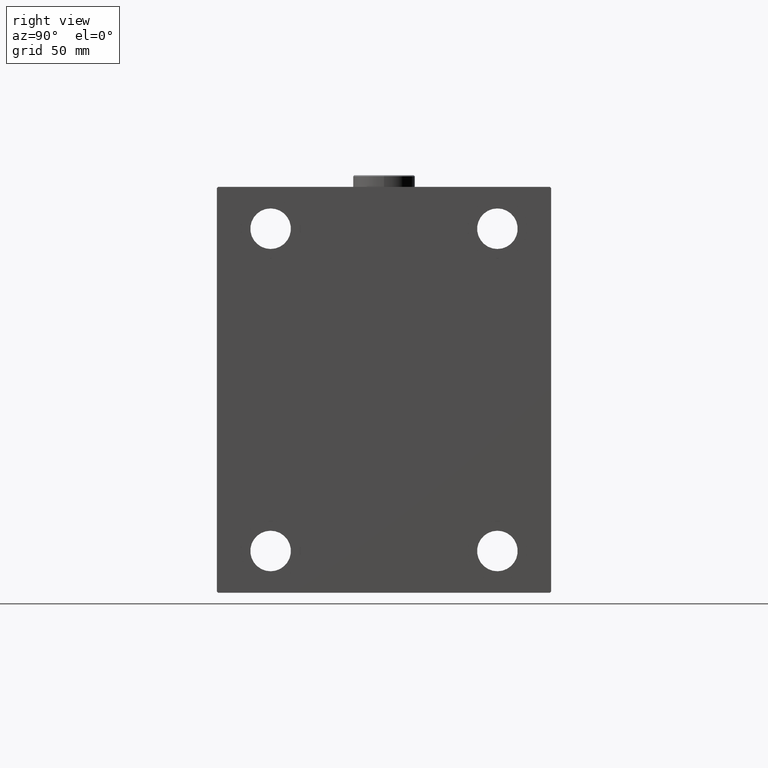
[diagram: clean part render]
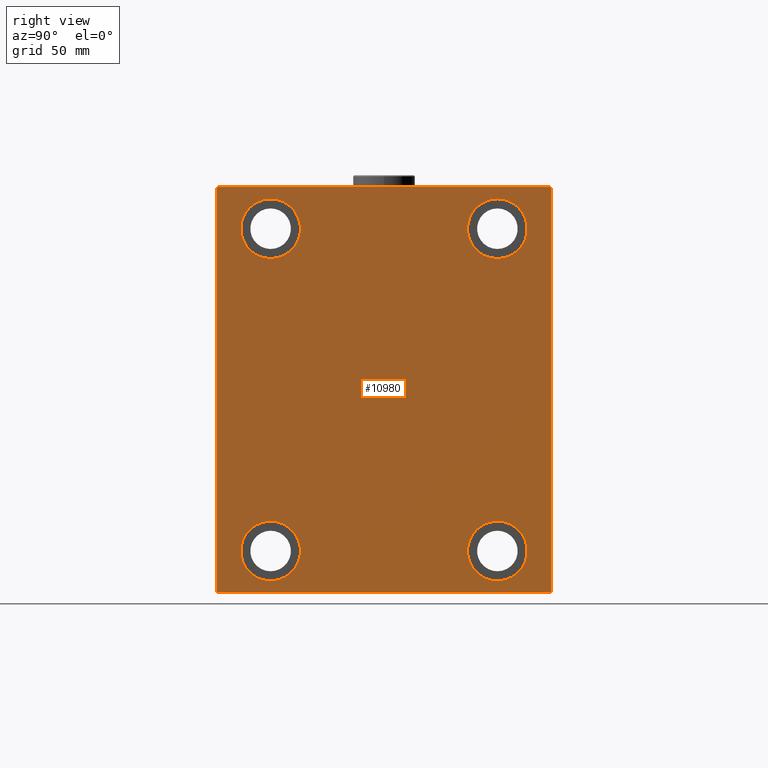
[diagram: same view with one face highlighted and labeled with its STEP entity id]
A machine part, right view. The second image highlights one B-rep face of the part: STEP entity #10980.
In plain terms, the highlighted planar face has unit normal (1, 0, 0).
Its self-contained STEP definition (entity closure, byte-faithful):
#272 = ORIENTED_EDGE ( 'NONE', *, *, #29087, .T. ) ;
#432 = DIRECTION ( 'NONE',  ( -0.000000000000000000, -0.7071067811865574537, 0.7071067811865376918 ) ) ;
#734 = ORIENTED_EDGE ( 'NONE', *, *, #31052, .T. ) ;
#816 = VERTEX_POINT ( 'NONE', #19893 ) ;
#879 = CARTESIAN_POINT ( 'NONE',  ( 135.0000000000000000, -77.25000000000001421, 77.25000000000001421 ) ) ;
#1199 = CARTESIAN_POINT ( 'NONE',  ( 135.0000000000000000, -47.49999999999997868, 67.50000000000000000 ) ) ;
#1245 = DIRECTION ( 'NONE',  ( -1.000000000000000000, -0.000000000000000000, -0.000000000000000000 ) ) ;
#1296 = DIRECTION ( 'NONE',  ( -1.000000000000000000, -0.000000000000000000, -0.000000000000000000 ) ) ;
#1312 = CARTESIAN_POINT ( 'NONE',  ( 135.0000000000000000, -47.49999999999999289, -55.00000000000000711 ) ) ;
#1444 = EDGE_CURVE ( 'NONE', #2184, #17658, #1511, .T. ) ;
#1511 = LINE ( 'NONE', #26849, #3877 ) ;
#1662 = ORIENTED_EDGE ( 'NONE', *, *, #27435, .T. ) ;
#1689 = CARTESIAN_POINT ( 'NONE',  ( 135.0000000000000000, -47.49999999999997868, 80.00000000000001421 ) ) ;
#1893 = DIRECTION ( 'NONE',  ( -1.000000000000000000, -0.000000000000000000, -0.000000000000000000 ) ) ;
#2170 = EDGE_LOOP ( 'NONE', ( #21534, #46013, #272, #8306, #10230, #734, #3068, #3596 ) ) ;
#2184 = VERTEX_POINT ( 'NONE', #10224 ) ;
#2574 = AXIS2_PLACEMENT_3D ( 'NONE', #1199, #1893, #19869 ) ;
#3068 = ORIENTED_EDGE ( 'NONE', *, *, #9405, .T. ) ;
#3083 = CIRCLE ( 'NONE', #13645, 12.50000000000001066 ) ;
#3486 = EDGE_CURVE ( 'NONE', #15811, #17014, #20440, .T. ) ;
#3596 = ORIENTED_EDGE ( 'NONE', *, *, #5410, .T. ) ;
#3877 = VECTOR ( 'NONE', #30171, 1000.000000000000000 ) ;
#4053 = VECTOR ( 'NONE', #40878, 1000.000000000000000 ) ;
#4209 = DIRECTION ( 'NONE',  ( 0.000000000000000000, -0.7071067811865474617, -0.7071067811865474617 ) ) ;
#4340 = DIRECTION ( 'NONE',  ( -0.000000000000000000, 0.7071067811865376918, 0.7071067811865574537 ) ) ;
#4852 = CARTESIAN_POINT ( 'NONE',  ( 135.0000000000000000, 47.50000000000000711, -67.50000000000000000 ) ) ;
#5410 = EDGE_CURVE ( 'NONE', #28209, #30635, #14635, .T. ) ;
#6150 = VERTEX_POINT ( 'NONE', #32414 ) ;
#6199 = AXIS2_PLACEMENT_3D ( 'NONE', #19288, #7708, #37082 ) ;
#6739 = VECTOR ( 'NONE', #4209, 1000.000000000000114 ) ;
#7311 = CARTESIAN_POINT ( 'NONE',  ( 135.0000000000000000, 69.50000000000007105, 85.00000000000000000 ) ) ;
#7708 = DIRECTION ( 'NONE',  ( -1.000000000000000000, -0.000000000000000000, -0.000000000000000000 ) ) ;
#7764 = CARTESIAN_POINT ( 'NONE',  ( 135.0000000000000000, -69.99999999999998579, 84.50000000000001421 ) ) ;
#7890 = CARTESIAN_POINT ( 'NONE',  ( 135.0000000000000000, 77.25000000000100897, -77.24999999999886313 ) ) ;
#8306 = ORIENTED_EDGE ( 'NONE', *, *, #43431, .T. ) ;
#8488 = ORIENTED_EDGE ( 'NONE', *, *, #40696, .T. ) ;
#8936 = CARTESIAN_POINT ( 'NONE',  ( 135.0000000000000000, 47.50000000000000711, 80.00000000000001421 ) ) ;
#9405 = EDGE_CURVE ( 'NONE', #30742, #28209, #26138, .T. ) ;
#9895 = DIRECTION ( 'NONE',  ( 0.000000000000000000, 0.000000000000000000, 1.000000000000000000 ) ) ;
#9934 = FACE_BOUND ( 'NONE', #27096, .T. ) ;
#10224 = CARTESIAN_POINT ( 'NONE',  ( 135.0000000000000000, -69.49999999999998579, -85.00000000000002842 ) ) ;
#10230 = ORIENTED_EDGE ( 'NONE', *, *, #1444, .T. ) ;
#10980 = ADVANCED_FACE ( 'NONE', ( #9934, #17038, #20821, #16809, #31505 ), #43135, .T. ) ;
#11105 = CARTESIAN_POINT ( 'NONE',  ( 135.0000000000000000, 47.50000000000000711, -67.50000000000000000 ) ) ;
#11418 = ORIENTED_EDGE ( 'NONE', *, *, #43494, .T. ) ;
#11439 = LINE ( 'NONE', #7890, #30580 ) ;
#11481 = DIRECTION ( 'NONE',  ( 0.000000000000000000, 0.000000000000000000, 1.000000000000000000 ) ) ;
#11483 = CIRCLE ( 'NONE', #37967, 12.49999999999999645 ) ;
#11940 = CARTESIAN_POINT ( 'NONE',  ( 135.0000000000000000, 47.50000000000000711, 67.50000000000000000 ) ) ;
#12461 = VECTOR ( 'NONE', #13541, 1000.000000000000000 ) ;
#12764 = VECTOR ( 'NONE', #19025, 1000.000000000000000 ) ;
#12818 = DIRECTION ( 'NONE',  ( 0.000000000000000000, 0.000000000000000000, 1.000000000000000000 ) ) ;
#13076 = EDGE_LOOP ( 'NONE', ( #32431, #40571 ) ) ;
#13269 = DIRECTION ( 'NONE',  ( 1.000000000000000000, 0.000000000000000000, 0.000000000000000000 ) ) ;
#13541 = DIRECTION ( 'NONE',  ( 0.000000000000000000, 0.000000000000000000, -1.000000000000000000 ) ) ;
#13645 = AXIS2_PLACEMENT_3D ( 'NONE', #46161, #39534, #9895 ) ;
#13717 = EDGE_CURVE ( 'NONE', #6150, #18129, #15550, .T. ) ;
#14187 = DIRECTION ( 'NONE',  ( 0.000000000000000000, 0.000000000000000000, -1.000000000000000000 ) ) ;
#14635 = LINE ( 'NONE', #43583, #30464 ) ;
#15186 = AXIS2_PLACEMENT_3D ( 'NONE', #11940, #34207, #11481 ) ;
#15268 = CARTESIAN_POINT ( 'NONE',  ( 135.0000000000000000, -77.24999999999907629, -77.25000000000120792 ) ) ;
#15550 = LINE ( 'NONE', #879, #6739 ) ;
#15811 = VERTEX_POINT ( 'NONE', #1689 ) ;
#16075 = CARTESIAN_POINT ( 'NONE',  ( 135.0000000000000000, -47.49999999999997868, 55.00000000000000000 ) ) ;
#16135 = CIRCLE ( 'NONE', #22191, 12.49999999999999645 ) ;
#16190 = CIRCLE ( 'NONE', #2574, 12.50000000000001066 ) ;
#16809 = FACE_BOUND ( 'NONE', #20377, .T. ) ;
#16928 = CIRCLE ( 'NONE', #19974, 12.49999999999999645 ) ;
#17014 = VERTEX_POINT ( 'NONE', #16075 ) ;
#17038 = FACE_BOUND ( 'NONE', #13076, .T. ) ;
#17424 = CIRCLE ( 'NONE', #15186, 12.50000000000001066 ) ;
#17624 = EDGE_CURVE ( 'NONE', #30635, #6150, #28485, .T. ) ;
#17658 = VERTEX_POINT ( 'NONE', #42046 ) ;
#17853 = EDGE_LOOP ( 'NONE', ( #23426, #22206 ) ) ;
#18055 = EDGE_CURVE ( 'NONE', #28688, #24580, #3083, .T. ) ;
#18129 = VERTEX_POINT ( 'NONE', #7764 ) ;
#18620 = EDGE_CURVE ( 'NONE', #24580, #28688, #17424, .T. ) ;
#19025 = DIRECTION ( 'NONE',  ( 0.000000000000000000, -8.163404592832031500E-17, 1.000000000000000000 ) ) ;
#19288 = CARTESIAN_POINT ( 'NONE',  ( 135.0000000000000000, -47.49999999999999289, -67.50000000000000000 ) ) ;
#19840 = DIRECTION ( 'NONE',  ( 0.000000000000000000, 0.000000000000000000, 1.000000000000000000 ) ) ;
#19869 = DIRECTION ( 'NONE',  ( 0.000000000000000000, 0.000000000000000000, 1.000000000000000000 ) ) ;
#19893 = CARTESIAN_POINT ( 'NONE',  ( 135.0000000000000000, 47.50000000000000711, -80.00000000000000000 ) ) ;
#19974 = AXIS2_PLACEMENT_3D ( 'NONE', #11105, #40036, #22454 ) ;
#20377 = EDGE_LOOP ( 'NONE', ( #25431, #8488 ) ) ;
#20440 = CIRCLE ( 'NONE', #36381, 12.50000000000001066 ) ;
#20612 = LINE ( 'NONE', #15268, #4053 ) ;
#20821 = FACE_BOUND ( 'NONE', #17853, .T. ) ;
#21281 = CARTESIAN_POINT ( 'NONE',  ( 135.0000000000000000, 0.000000000000000000, 0.000000000000000000 ) ) ;
#21534 = ORIENTED_EDGE ( 'NONE', *, *, #17624, .T. ) ;
#22191 = AXIS2_PLACEMENT_3D ( 'NONE', #4852, #1296, #12818 ) ;
#22206 = ORIENTED_EDGE ( 'NONE', *, *, #18620, .T. ) ;
#22454 = DIRECTION ( 'NONE',  ( 0.000000000000000000, 0.000000000000000000, 1.000000000000000000 ) ) ;
#23426 = ORIENTED_EDGE ( 'NONE', *, *, #18055, .T. ) ;
#23970 = LINE ( 'NONE', #42731, #12461 ) ;
#24580 = VERTEX_POINT ( 'NONE', #8936 ) ;
#25431 = ORIENTED_EDGE ( 'NONE', *, *, #39614, .T. ) ;
#26138 = LINE ( 'NONE', #44888, #12764 ) ;
#26849 = CARTESIAN_POINT ( 'NONE',  ( 135.0000000000000000, -69.99999999999998579, -85.00000000000002842 ) ) ;
#27096 = EDGE_LOOP ( 'NONE', ( #11418, #1662 ) ) ;
#27435 = EDGE_CURVE ( 'NONE', #40887, #816, #16928, .T. ) ;
#28209 = VERTEX_POINT ( 'NONE', #28219 ) ;
#28219 = CARTESIAN_POINT ( 'NONE',  ( 135.0000000000000000, 70.00000000000001421, 84.50000000000007105 ) ) ;
#28485 = LINE ( 'NONE', #38240, #44716 ) ;
#28688 = VERTEX_POINT ( 'NONE', #36665 ) ;
#29043 = VERTEX_POINT ( 'NONE', #45123 ) ;
#29087 = EDGE_CURVE ( 'NONE', #18129, #41740, #23970, .T. ) ;
#29438 = CARTESIAN_POINT ( 'NONE',  ( 135.0000000000000000, -69.99999999999998579, -84.50000000000004263 ) ) ;
#30171 = DIRECTION ( 'NONE',  ( 0.000000000000000000, 1.000000000000000000, 9.912705577010325549E-17 ) ) ;
#30431 = EDGE_CURVE ( 'NONE', #17014, #15811, #16190, .T. ) ;
#30464 = VECTOR ( 'NONE', #432, 999.9999999999998863 ) ;
#30580 = VECTOR ( 'NONE', #4340, 999.9999999999998863 ) ;
#30635 = VERTEX_POINT ( 'NONE', #7311 ) ;
#30742 = VERTEX_POINT ( 'NONE', #40953 ) ;
#31052 = EDGE_CURVE ( 'NONE', #17658, #30742, #11439, .T. ) ;
#31505 = FACE_OUTER_BOUND ( 'NONE', #2170, .T. ) ;
#32414 = CARTESIAN_POINT ( 'NONE',  ( 135.0000000000000000, -69.50000000000001421, 84.99999999999998579 ) ) ;
#32431 = ORIENTED_EDGE ( 'NONE', *, *, #30431, .T. ) ;
#33000 = CARTESIAN_POINT ( 'NONE',  ( 135.0000000000000000, -47.49999999999999289, -67.50000000000000000 ) ) ;
#34113 = VERTEX_POINT ( 'NONE', #1312 ) ;
#34207 = DIRECTION ( 'NONE',  ( -1.000000000000000000, -0.000000000000000000, -0.000000000000000000 ) ) ;
#35794 = CARTESIAN_POINT ( 'NONE',  ( 135.0000000000000000, 47.50000000000000711, -55.00000000000000711 ) ) ;
#36278 = AXIS2_PLACEMENT_3D ( 'NONE', #21281, #13269, #14187 ) ;
#36381 = AXIS2_PLACEMENT_3D ( 'NONE', #45233, #38337, #19840 ) ;
#36665 = CARTESIAN_POINT ( 'NONE',  ( 135.0000000000000000, 47.50000000000000711, 55.00000000000000000 ) ) ;
#36801 = DIRECTION ( 'NONE',  ( 0.000000000000000000, 0.000000000000000000, 1.000000000000000000 ) ) ;
#37082 = DIRECTION ( 'NONE',  ( 0.000000000000000000, 0.000000000000000000, 1.000000000000000000 ) ) ;
#37967 = AXIS2_PLACEMENT_3D ( 'NONE', #33000, #1245, #36801 ) ;
#38240 = CARTESIAN_POINT ( 'NONE',  ( 135.0000000000000000, 70.00000000000001421, 85.00000000000000000 ) ) ;
#38337 = DIRECTION ( 'NONE',  ( -1.000000000000000000, -0.000000000000000000, -0.000000000000000000 ) ) ;
#39534 = DIRECTION ( 'NONE',  ( -1.000000000000000000, -0.000000000000000000, -0.000000000000000000 ) ) ;
#39614 = EDGE_CURVE ( 'NONE', #29043, #34113, #11483, .T. ) ;
#40036 = DIRECTION ( 'NONE',  ( -1.000000000000000000, -0.000000000000000000, -0.000000000000000000 ) ) ;
#40571 = ORIENTED_EDGE ( 'NONE', *, *, #3486, .T. ) ;
#40696 = EDGE_CURVE ( 'NONE', #34113, #29043, #46324, .T. ) ;
#40878 = DIRECTION ( 'NONE',  ( -0.000000000000000000, 0.7071067811865573427, -0.7071067811865378028 ) ) ;
#40887 = VERTEX_POINT ( 'NONE', #35794 ) ;
#40953 = CARTESIAN_POINT ( 'NONE',  ( 135.0000000000000000, 70.00000000000002842, -84.50000000000004263 ) ) ;
#41740 = VERTEX_POINT ( 'NONE', #29438 ) ;
#42046 = CARTESIAN_POINT ( 'NONE',  ( 135.0000000000000000, 69.50000000000007105, -85.00000000000001421 ) ) ;
#42731 = CARTESIAN_POINT ( 'NONE',  ( 135.0000000000000000, -69.99999999999998579, 84.99999999999998579 ) ) ;
#42741 = DIRECTION ( 'NONE',  ( 0.000000000000000000, -1.000000000000000000, -9.912705577010325549E-17 ) ) ;
#43135 = PLANE ( 'NONE',  #36278 ) ;
#43431 = EDGE_CURVE ( 'NONE', #41740, #2184, #20612, .T. ) ;
#43494 = EDGE_CURVE ( 'NONE', #816, #40887, #16135, .T. ) ;
#43583 = CARTESIAN_POINT ( 'NONE',  ( 135.0000000000000000, 77.24999999999907629, 77.25000000000122213 ) ) ;
#44716 = VECTOR ( 'NONE', #42741, 1000.000000000000000 ) ;
#44888 = CARTESIAN_POINT ( 'NONE',  ( 135.0000000000000000, 70.00000000000002842, -85.00000000000001421 ) ) ;
#45123 = CARTESIAN_POINT ( 'NONE',  ( 135.0000000000000000, -47.49999999999999289, -80.00000000000000000 ) ) ;
#45233 = CARTESIAN_POINT ( 'NONE',  ( 135.0000000000000000, -47.49999999999997868, 67.50000000000000000 ) ) ;
#46013 = ORIENTED_EDGE ( 'NONE', *, *, #13717, .T. ) ;
#46161 = CARTESIAN_POINT ( 'NONE',  ( 135.0000000000000000, 47.50000000000000711, 67.50000000000000000 ) ) ;
#46324 = CIRCLE ( 'NONE', #6199, 12.49999999999999645 ) ;